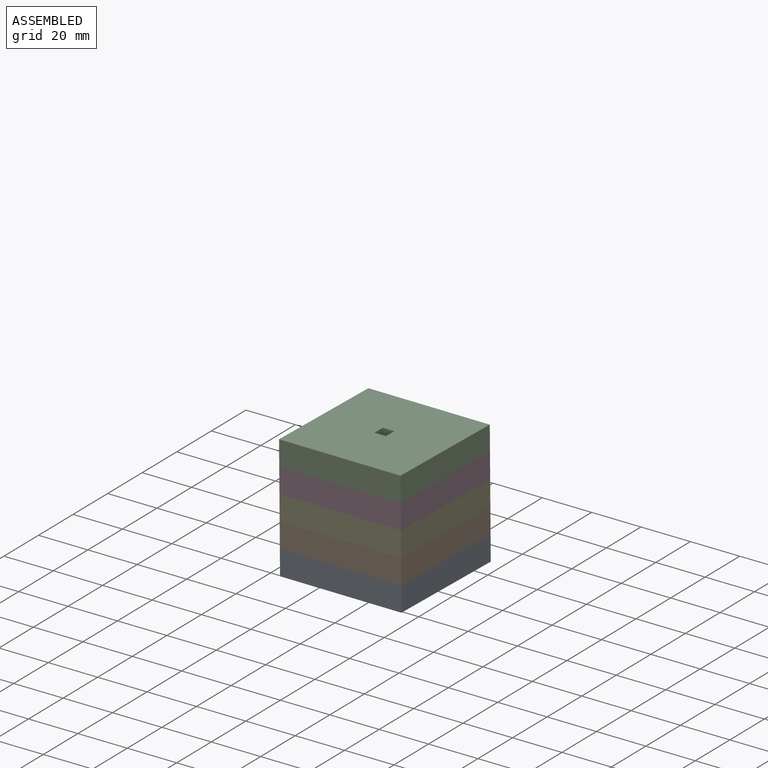
[diagram: assembled view]
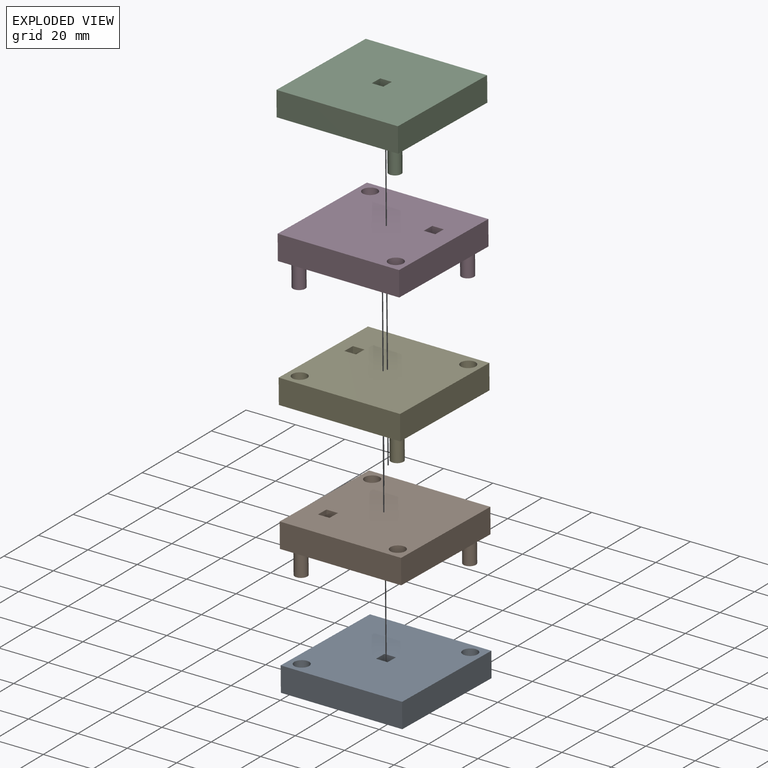
[diagram: exploded view]
GUIDED TOUR — MATED ASSEMBLY (Onshape document c3f80dff20c8093bbf8ad3bd, AutoMate assembly c3f80dff20c8093bbf8ad3bd_233ad9ad6a87a321f7715154_011e0a620a1a82ced8782404_default)

This assembly has 5 components, labeled P0..P4 below (a component is one placed occurrence of a part; the same part can appear more than once), held together by 4 mates. A mate is a constraint between two components; its type names the relative motion it leaves free:
  FASTENED — locks the two components together rigidly (no relative motion).
Axis/direction vectors are unit vectors and 'through' points are millimeter coordinates, both in the assembly's world frame.

MATES
  1. FASTENED "Fastened 2": P3 <-> P4, direction (0.009, -0.002, -1.000) through (103.99, 46.44, 52.28) mm
  2. FASTENED "Fastened 3": P4 <-> P1, direction (0.009, -0.002, -1.000) through (103.15, 6.43, 42.35) mm
  3. FASTENED "Fastened 1": P2 <-> P3, direction (0.009, -0.002, -1.000) through (102.97, 6.47, 62.35) mm
  4. FASTENED "Fastened 4": P1 <-> P0, direction (0.009, -0.002, -1.000) through (63.26, 7.34, 31.97) mm

ASSEMBLY ORDER
  1. P1 — the base component [order heuristic]
  2. P0 [order verified]
  3. P4 — core [order heuristic]
  4. P3 — core [order heuristic]
  5. P2 — core [order heuristic]
(P0 verified with a relaxed clearance tolerance: the source model stores slight part interference there.)
Order-tag legend:
  [order verified] — this step's position reverses a verified removal order: the component was checked to insert without passing through the ones already placed.
  [order heuristic] — the first 4 components form the assembly's core: parts whose collision-free extraction could not be verified, listed in mate-graph order.

Of the 5 components, 4 carry the full construction recipe — the FeatureScript program that regenerates the part's solid from scratch; the rest are supplied as boundary geometry only.
Each toured component is shown spotlighted twice — in the assembled view, then in the exploded view, where a leader line traces a displaced component back to its assembled socket (saturated green if recipe-attached, orange if geometry-only; every other component desaturated gray) — followed by its recipe or geometry summary and the mates that hold it.
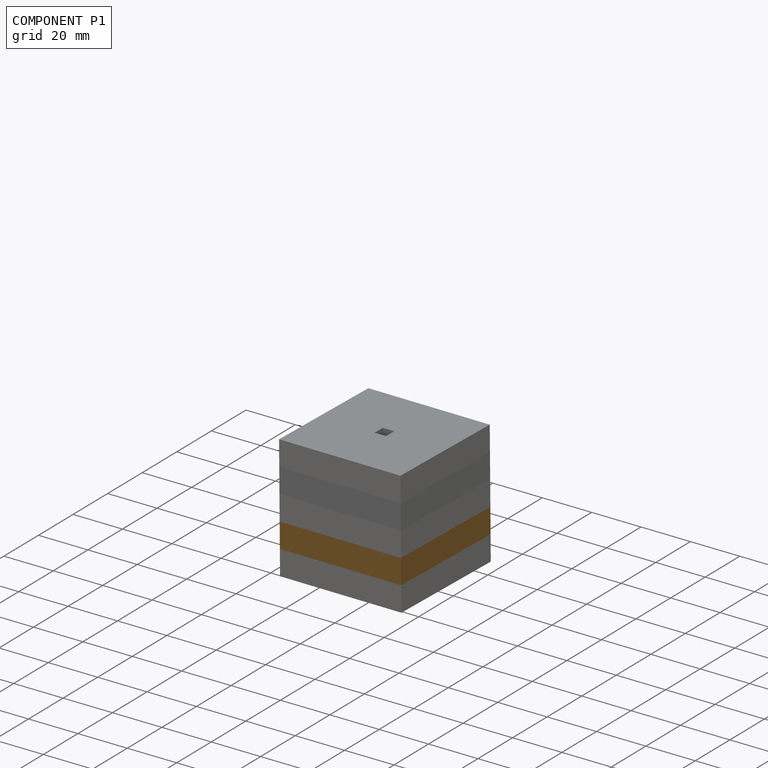
[diagram: component P1 — assembled]
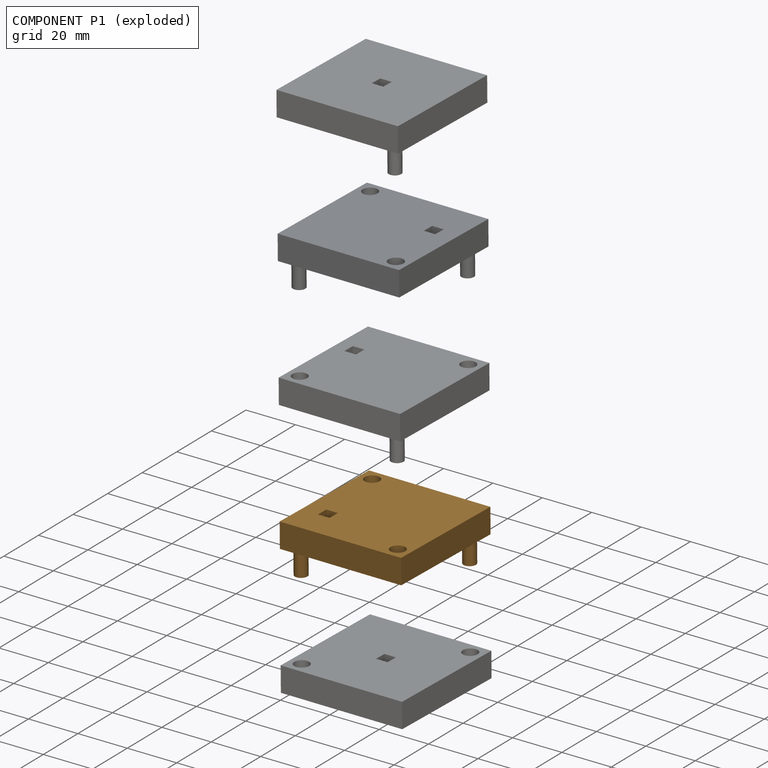
[diagram: component P1 — exploded]
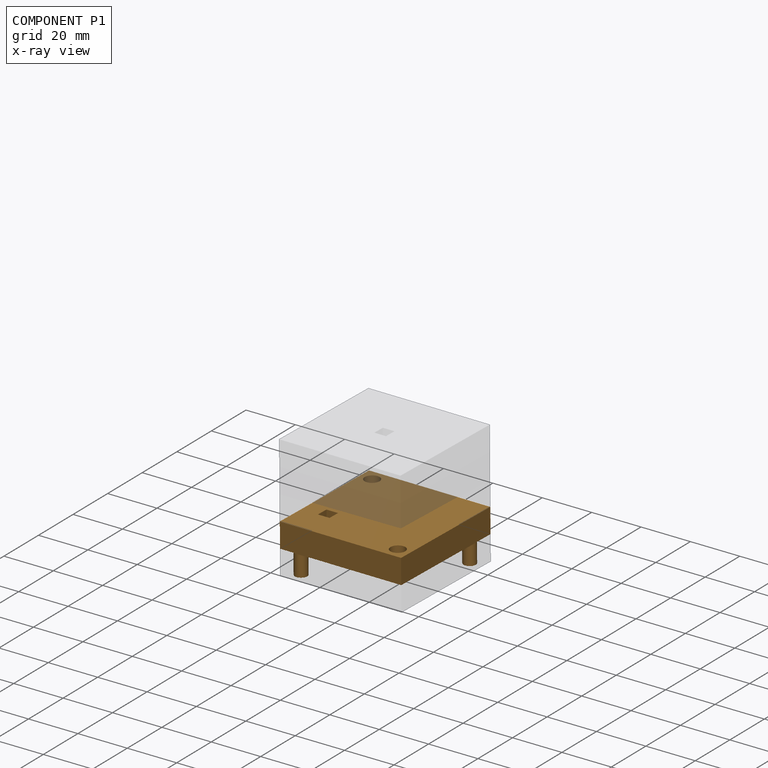
[diagram: component P1 — x-ray view]
COMPONENT P1 — geometry summary (no construction recipe available for this part):
  bounding box: 50.0 x 50.0 x 20.0 mm
  B-rep topology: 1 solid, 32 faces, 168 edges
  volume: 22181 mm^3 (44% of its bounding box)
Held by: FASTENED mate "Fastened 3" to P4; FASTENED mate "Fastened 4" to P0.
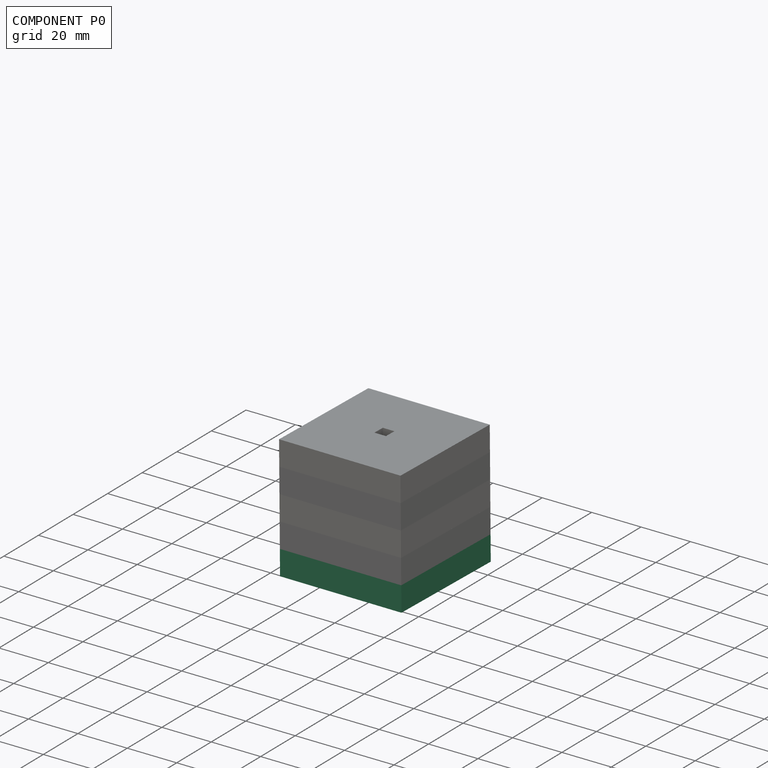
[diagram: component P0 — assembled]
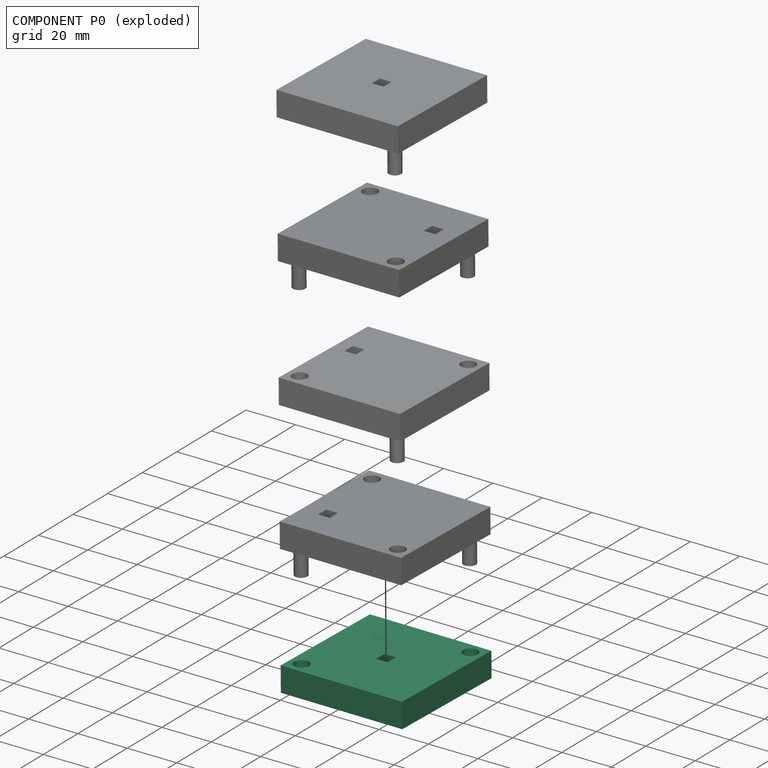
[diagram: component P0 — exploded]
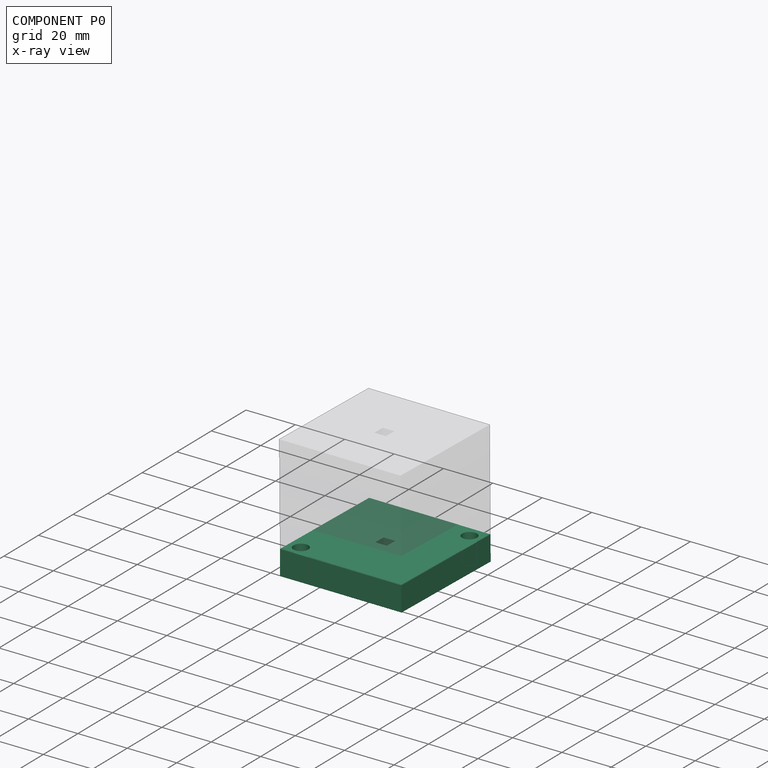
[diagram: component P0 — x-ray view]
COMPONENT P0 — recipe-attached (CADFS 00128835, mesh-verified: the recipe's output STEP matches this component's geometry to below the mesh-comparison resolution (tessellation chordal tolerance ~0.107 mm)).
Held by: FASTENED mate "Fastened 4" to P1.
Construction recipe (FeatureScript — the CAD program that rebuilds this solid; sketch coordinates are in the units given by the * unit suffixes, e.g. mm):

FeatureScript 1511;
import(path : "onshape/std/geometry.fs", version : "1511.0");
import(path : "onshape/std/common.fs", version : "1511.0");
const mm = millimeter;
const VERTEX = EntityType.VERTEX;
const EDGE = EntityType.EDGE;
const FACE = EntityType.FACE;
const BODY = EntityType.BODY;
function v(x, y){return vector(x, y);}
function OD(order){return orderDisambiguation(order);}
function OSD(set){return originalSetDisambiguation(set);}
function TD(topology){return topologyDisambiguation(topology);}
function TDD(query){return trueDependencyDisambiguation(query);}
function sQuery(a, b, c) {return sketchEntityQuery(a, b, c);}

annotation { "Feature Type Name" : "Feature", "Feature Type Description" : "" }
export const myFeature = defineFeature(function(context is Context, id is Id, definition is map)
    precondition{}
    {
        {
            var Q0;
            Q0=qCreatedBy(makeId("Top.planeOp"),FACE);
            var sketch = newSketch(context, id + "F0", { "sketchPlane" : qUnion([Q0])});
            skLineSegment(sketch, "E0.bottom", {"start": v(0, 0) * mm, "end": v(50, 0) * mm});
            skLineSegment(sketch, "E0.top", {"start": v(0, -50) * mm, "end": v(50, -50) * mm});
            skLineSegment(sketch, "E0.left", {"start": v(0, 0) * mm, "end": v(0, -50) * mm});
            skLineSegment(sketch, "E0.right", {"start": v(50, 0) * mm, "end": v(50, -50) * mm});
            skLineSegment(sketch, "E1", {"start": v(25, 0) * mm, "end": v(25, -50) * mm, "construction": true});
            skLineSegment(sketch, "E2", {"start": v(0, -25) * mm, "end": v(50, -25) * mm, "construction": true});
            skLineSegment(sketch, "E3.bottom", {"start": v(27.38, -27.38) * mm, "end": v(22.62, -27.38) * mm});
            skLineSegment(sketch, "E3.top", {"start": v(27.38, -22.62) * mm, "end": v(22.62, -22.62) * mm});
            skLineSegment(sketch, "E3.left", {"start": v(27.38, -27.38) * mm, "end": v(27.38, -22.62) * mm});
            skLineSegment(sketch, "E3.right", {"start": v(22.62, -27.38) * mm, "end": v(22.62, -22.62) * mm});
            skPoint(sketch, "E3.middle", {"position": v(25, -25) * mm});
            skCircle(sketch, "E4", {"center": v(5, -45) * mm, "radius": 3 * mm});
            skCircle(sketch, "E5", {"center": v(45, -5) * mm, "radius": 3 * mm});
            skSolve(sketch);
        }
        {
            var Q0;
            Q0=makeQuery(id+"F0.imprint","IMPRINT",FACE,{"disambiguationData":[TD([[makeQuery(id+"F0.imprint","IMPRINT",EDGE,{"derivedFrom":sQuery(id+"F0.wireOp",EDGE,"E0.bottom")}),-1.0]])]});
            extrude(context, id + "F1", {"entities" : qUnion([Q0]), "depth" : 10 * mm});
        }
    });
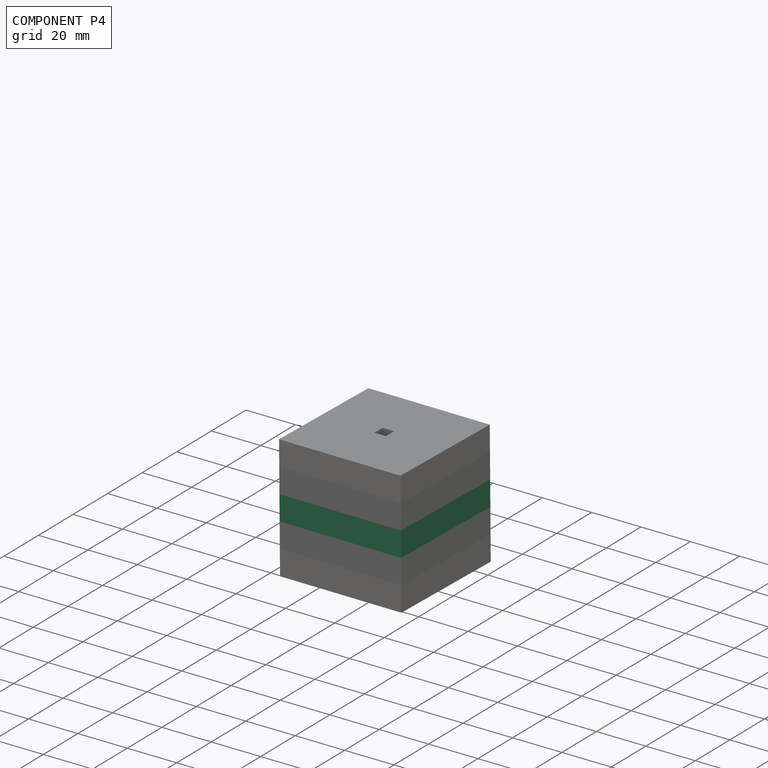
[diagram: component P4 — assembled]
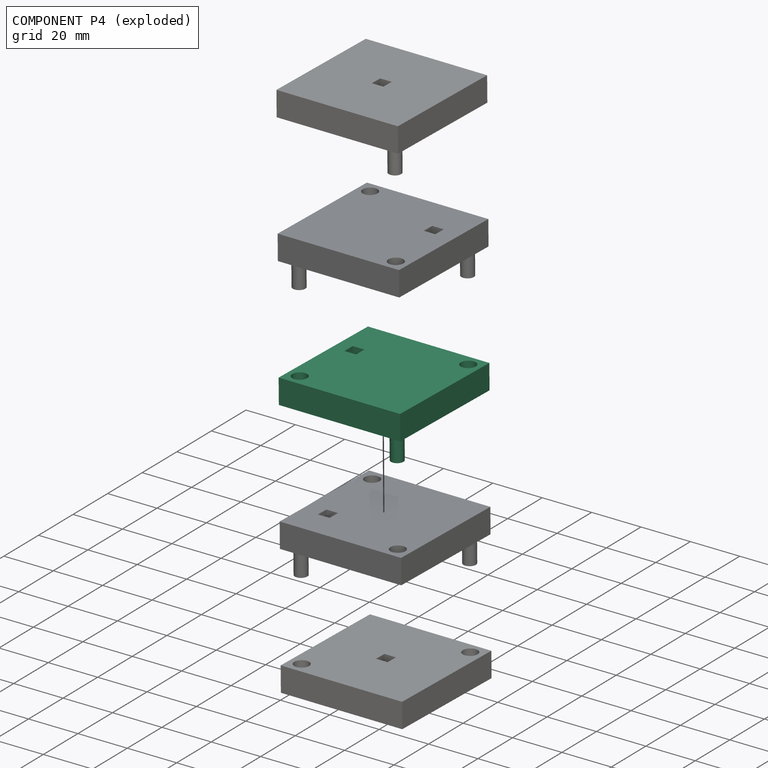
[diagram: component P4 — exploded]
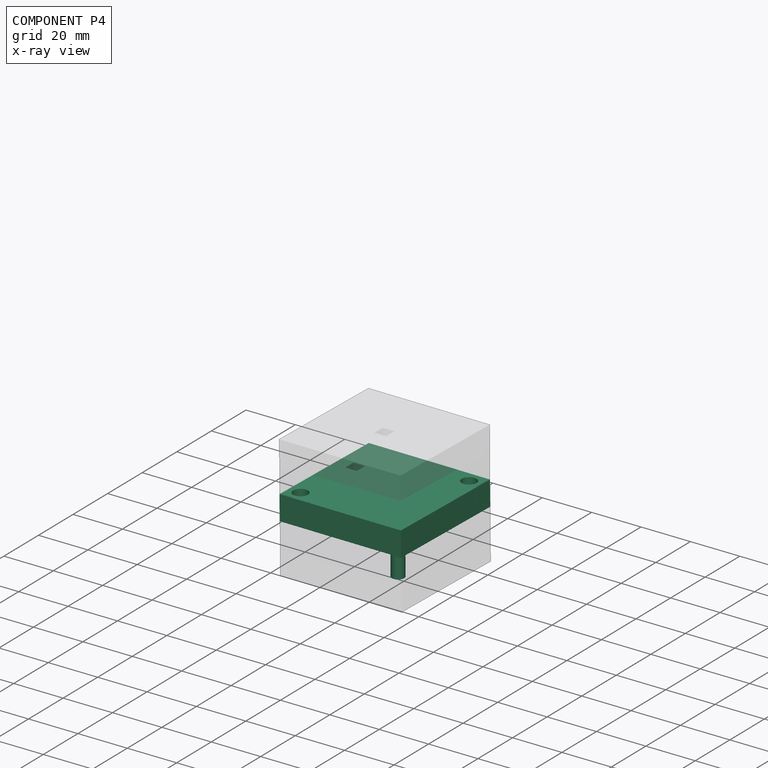
[diagram: component P4 — x-ray view]
COMPONENT P4 — recipe-attached (CADFS 00128833, mesh-verified: the recipe's output STEP matches this component's geometry to below the mesh-comparison resolution (tessellation chordal tolerance ~0.11 mm)).
Held by: FASTENED mate "Fastened 2" to P3; FASTENED mate "Fastened 3" to P1.
Construction recipe (FeatureScript — the CAD program that rebuilds this solid; sketch coordinates are in the units given by the * unit suffixes, e.g. mm):

FeatureScript 1511;
import(path : "onshape/std/geometry.fs", version : "1511.0");
import(path : "onshape/std/common.fs", version : "1511.0");
const mm = millimeter;
const VERTEX = EntityType.VERTEX;
const EDGE = EntityType.EDGE;
const FACE = EntityType.FACE;
const BODY = EntityType.BODY;
function v(x, y){return vector(x, y);}
function OD(order){return orderDisambiguation(order);}
function OSD(set){return originalSetDisambiguation(set);}
function TD(topology){return topologyDisambiguation(topology);}
function TDD(query){return trueDependencyDisambiguation(query);}
function sQuery(a, b, c) {return sketchEntityQuery(a, b, c);}

annotation { "Feature Type Name" : "Feature", "Feature Type Description" : "" }
export const myFeature = defineFeature(function(context is Context, id is Id, definition is map)
    precondition{}
    {
        {
            var Q0;
            Q0=qCreatedBy(makeId("Front.planeOp"),FACE);
            var sketch = newSketch(context, id + "F0", { "sketchPlane" : qUnion([Q0])});
            skLineSegment(sketch, "E0.bottom", {"start": v(7.18, 23.9) * mm, "end": v(-42.82, 23.9) * mm});
            skLineSegment(sketch, "E0.top", {"start": v(7.18, -26.1) * mm, "end": v(-42.82, -26.1) * mm});
            skLineSegment(sketch, "E0.left", {"start": v(7.18, 23.9) * mm, "end": v(7.18, -26.1) * mm});
            skLineSegment(sketch, "E0.right", {"start": v(-42.82, 23.9) * mm, "end": v(-42.82, -26.1) * mm});
            skCircle(sketch, "E1", {"center": v(-37.82, -21.1) * mm, "radius": 3 * mm});
            skCircle(sketch, "E2", {"center": v(2.18, -21.1) * mm, "radius": 2.5 * mm});
            skCircle(sketch, "E3", {"center": v(2.18, 18.9) * mm, "radius": 3 * mm});
            skCircle(sketch, "E4", {"center": v(-37.82, 18.9) * mm, "radius": 2.5 * mm});
            skLineSegment(sketch, "E5.bottom", {"start": v(-32.86, 8.42) * mm, "end": v(-37.62, 8.42) * mm});
            skLineSegment(sketch, "E5.top", {"start": v(-32.86, 3.65) * mm, "end": v(-37.62, 3.65) * mm});
            skLineSegment(sketch, "E5.left", {"start": v(-32.86, 8.42) * mm, "end": v(-32.86, 3.65) * mm});
            skLineSegment(sketch, "E5.right", {"start": v(-37.62, 8.42) * mm, "end": v(-37.62, 3.65) * mm});
            skLineSegment(sketch, "E6", {"start": v(-32.86, 8.42) * mm, "end": v(-16.68, 8.42) * mm});
            skLineSegment(sketch, "E7", {"start": v(-16.68, 8.42) * mm, "end": v(-16.68, 14.8) * mm});
            skLineSegment(sketch, "E8", {"start": v(-16.68, 14.8) * mm, "end": v(-11.91, 14.8) * mm});
            skLineSegment(sketch, "E9", {"start": v(-32.86, 3.65) * mm, "end": v(-16.68, 3.65) * mm});
            skLineSegment(sketch, "E10", {"start": v(-11.91, 14.8) * mm, "end": v(-11.91, 8.42) * mm});
            skLineSegment(sketch, "E11", {"start": v(-11.91, 8.42) * mm, "end": v(-2.53, 8.42) * mm});
            skLineSegment(sketch, "E12", {"start": v(-2.53, 8.42) * mm, "end": v(-2.53, -12.85) * mm});
            skLineSegment(sketch, "E13", {"start": v(-2.53, -12.85) * mm, "end": v(-13.78, -12.85) * mm});
            skLineSegment(sketch, "E14", {"start": v(-16.68, 3.65) * mm, "end": v(-9, 3.65) * mm});
            skLineSegment(sketch, "E15", {"start": v(-13.78, -12.85) * mm, "end": v(-19.58, -12.85) * mm});
            skLineSegment(sketch, "E16", {"start": v(-19.58, -12.85) * mm, "end": v(-19.58, -10.07) * mm});
            skLineSegment(sketch, "E17", {"start": v(-19.58, -10.07) * mm, "end": v(-27.18, -10.07) * mm});
            skLineSegment(sketch, "E18", {"start": v(-9, 3.65) * mm, "end": v(-9, 0.36) * mm});
            skLineSegment(sketch, "E19", {"start": v(-9, 0.36) * mm, "end": v(-14.44, 0.36) * mm});
            skLineSegment(sketch, "E20", {"start": v(-14.44, 0.36) * mm, "end": v(-14.44, -4.4) * mm});
            skLineSegment(sketch, "E21", {"start": v(-14.44, -4.4) * mm, "end": v(-7.3, -4.4) * mm});
            skLineSegment(sketch, "E22", {"start": v(-27.18, -5.3) * mm, "end": v(-14.81, -5.3) * mm});
            skLineSegment(sketch, "E23", {"start": v(-14.81, -5.3) * mm, "end": v(-14.81, -8.87) * mm});
            skLineSegment(sketch, "E24", {"start": v(-14.81, -8.87) * mm, "end": v(-7.3, -8.87) * mm});
            skLineSegment(sketch, "E25", {"start": v(-7.3, -8.87) * mm, "end": v(-7.3, -4.4) * mm});
            skLineSegment(sketch, "E26", {"start": v(-35.8, -14.19) * mm, "end": v(-31.04, -14.19) * mm});
            skLineSegment(sketch, "E27", {"start": v(-35.8, -14.19) * mm, "end": v(-35.8, -9.43) * mm});
            skLineSegment(sketch, "E28", {"start": v(-35.8, -9.43) * mm, "end": v(-31.04, -9.43) * mm});
            skLineSegment(sketch, "E29", {"start": v(-31.04, -9.43) * mm, "end": v(-31.04, -14.19) * mm});
            skLineSegment(sketch, "E30", {"start": v(-27.18, -5.3) * mm, "end": v(-35.8, -5.3) * mm});
            skLineSegment(sketch, "E31", {"start": v(-35.8, -5.3) * mm, "end": v(-35.8, -9.43) * mm});
            skLineSegment(sketch, "E32", {"start": v(-27.18, -10.07) * mm, "end": v(-27.18, -9.43) * mm});
            skLineSegment(sketch, "E33", {"start": v(-27.18, -9.43) * mm, "end": v(-31.04, -9.43) * mm});
            skSolve(sketch);
        }
        {
            var Q0;
            Q0=makeQuery(id+"F0.imprint","IMPRINT",FACE,{"disambiguationData":[TD([[makeQuery(id+"F0.imprint","IMPRINT",EDGE,{"derivedFrom":sQuery(id+"F0.wireOp",EDGE,"E0.bottom")}),1.0]])]});
            extrude(context, id + "F1", {"entities" : qUnion([Q0]), "endBound" : BoundingType.SYMMETRIC, "depth" : 10 * mm});
        }
        {
            var Q0;
            Q0=makeQuery(id+"F0.imprint","IMPRINT",FACE,{"disambiguationData":[TD([[makeQuery(id+"F0.imprint","IMPRINT",EDGE,{"derivedFrom":sQuery(id+"F0.wireOp",EDGE,"E5.left")}),1.0]])]});
            var Q1;
            Q1=makeQuery(id+"F0.imprint","IMPRINT",FACE,{"disambiguationData":[TD([[makeQuery(id+"F0.imprint","IMPRINT",EDGE,{"derivedFrom":sQuery(id+"F0.wireOp",EDGE,"E26")}),1.0]])]});
            extrude(context, id + "F2", {"entities" : qUnion([Q0, Q1]), "operationType" : NewBodyOperationType.ADD, "depth" : 5 * mm});
        }
        {
            var Q0;
            Q0=makeQuery(id+"F0.imprint","IMPRINT",FACE,{"disambiguationData":[TD([[makeQuery(id+"F0.imprint","IMPRINT",EDGE,{"derivedFrom":sQuery(id+"F0.wireOp",EDGE,"E2")}),1.0]])]});
            var Q1;
            Q1=makeQuery(id+"F0.imprint","IMPRINT",FACE,{"disambiguationData":[TD([[makeQuery(id+"F0.imprint","IMPRINT",EDGE,{"derivedFrom":sQuery(id+"F0.wireOp",EDGE,"E4")}),1.0]])]});
            extrude(context, id + "F3", {"entities" : qUnion([Q0, Q1]), "operationType" : NewBodyOperationType.ADD, "oppositeDirection" : true, "depth" : 15 * mm, "hasSecondDirection" : true, "secondDirectionOppositeDirection" : false, "secondDirectionDepth" : 5 * mm});
        }
    });
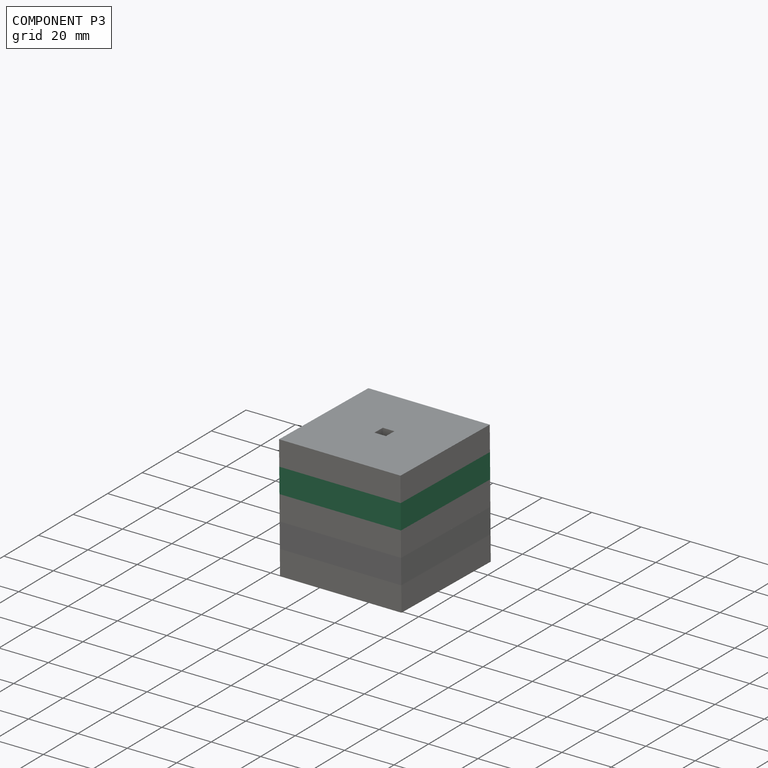
[diagram: component P3 — assembled]
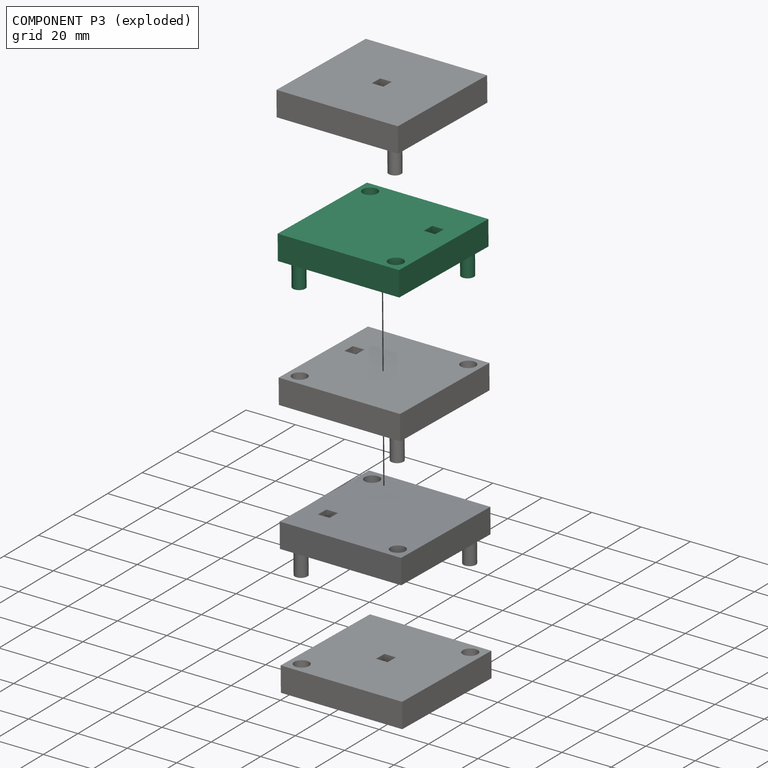
[diagram: component P3 — exploded]
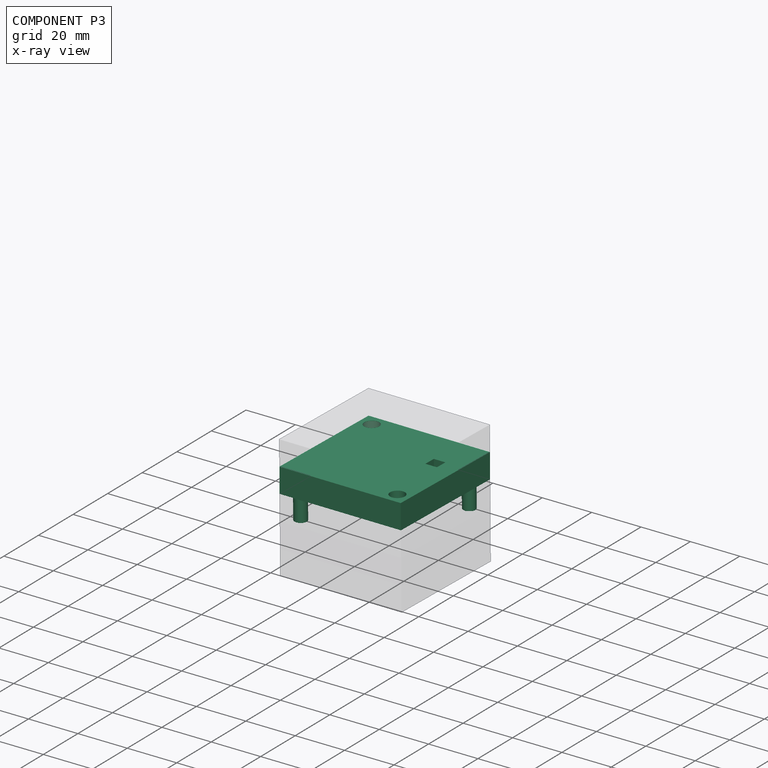
[diagram: component P3 — x-ray view]
COMPONENT P3 — recipe-attached (CADFS 00128832, mesh-verified: the recipe's output STEP matches this component's geometry to below the mesh-comparison resolution (tessellation chordal tolerance ~0.11 mm)).
Held by: FASTENED mate "Fastened 2" to P4; FASTENED mate "Fastened 1" to P2.
Construction recipe (FeatureScript — the CAD program that rebuilds this solid; sketch coordinates are in the units given by the * unit suffixes, e.g. mm):

FeatureScript 1511;
import(path : "onshape/std/geometry.fs", version : "1511.0");
import(path : "onshape/std/common.fs", version : "1511.0");
const mm = millimeter;
const VERTEX = EntityType.VERTEX;
const EDGE = EntityType.EDGE;
const FACE = EntityType.FACE;
const BODY = EntityType.BODY;
function v(x, y){return vector(x, y);}
function OD(order){return orderDisambiguation(order);}
function OSD(set){return originalSetDisambiguation(set);}
function TD(topology){return topologyDisambiguation(topology);}
function TDD(query){return trueDependencyDisambiguation(query);}
function sQuery(a, b, c) {return sketchEntityQuery(a, b, c);}

annotation { "Feature Type Name" : "Feature", "Feature Type Description" : "" }
export const myFeature = defineFeature(function(context is Context, id is Id, definition is map)
    precondition{}
    {
        {
            var Q0;
            Q0=qCreatedBy(makeId("Top.planeOp"),FACE);
            var sketch = newSketch(context, id + "F0", { "sketchPlane" : qUnion([Q0])});
            skLineSegment(sketch, "E0.bottom", {"start": v(0, 0) * mm, "end": v(50, 0) * mm});
            skLineSegment(sketch, "E0.top", {"start": v(0, -50) * mm, "end": v(50, -50) * mm});
            skLineSegment(sketch, "E0.left", {"start": v(0, 0) * mm, "end": v(0, -50) * mm});
            skLineSegment(sketch, "E0.right", {"start": v(50, 0) * mm, "end": v(50, -50) * mm});
            skLineSegment(sketch, "E1", {"start": v(25, 0) * mm, "end": v(25, -50) * mm, "construction": true});
            skLineSegment(sketch, "E2", {"start": v(0, -25) * mm, "end": v(50, -25) * mm, "construction": true});
            skPoint(sketch, "E3", {"position": v(38.1, -34.78) * mm});
            skLineSegment(sketch, "E4.top", {"start": v(38.1, -30.02) * mm, "end": v(42.86, -30.02) * mm});
            skLineSegment(sketch, "E4.right", {"start": v(42.86, -34.78) * mm, "end": v(42.86, -30.02) * mm});
            skPoint(sketch, "E5", {"position": v(9.52, -9.53) * mm});
            skLineSegment(sketch, "E6", {"start": v(9.52, -9.53) * mm, "end": v(9.52, -14.29) * mm});
            skLineSegment(sketch, "E7", {"start": v(9.52, -9.53) * mm, "end": v(19.05, -9.53) * mm});
            skLineSegment(sketch, "E8.MirrorCS", {"start": v(28.57, -9.52) * mm, "end": v(23.81, -9.52) * mm});
            skLineSegment(sketch, "E9.MirrorCS", {"start": v(9.52, -28.57) * mm, "end": v(9.52, -19.05) * mm});
            skLineSegment(sketch, "E10.MirrorCS", {"start": v(23.81, -28.57) * mm, "end": v(19.05, -28.57) * mm});
            skLineSegment(sketch, "E11.MirrorCS", {"start": v(30.85, -14.7) * mm, "end": v(30.85, -19.46) * mm});
            skLineSegment(sketch, "E12", {"start": v(30.85, -14.7) * mm, "end": v(40.04, -14.7) * mm});
            skLineSegment(sketch, "E13", {"start": v(28.57, -9.52) * mm, "end": v(38.8, -9.52) * mm});
            skPoint(sketch, "E14.orphan", {"position": v(30.85, -9.94) * mm});
            skLineSegment(sketch, "E15", {"start": v(38.1, -30.02) * mm, "end": v(38.1, -34.78) * mm});
            skPoint(sketch, "E16.orphan", {"position": v(9.52, -28.57) * mm});
            skLineSegment(sketch, "E17", {"start": v(23.81, -9.52) * mm, "end": v(23.81, -19.05) * mm});
            skLineSegment(sketch, "E18", {"start": v(23.81, -28.57) * mm, "end": v(23.81, -23.81) * mm});
            skLineSegment(sketch, "E19", {"start": v(19.05, -9.53) * mm, "end": v(19.05, -19.05) * mm});
            skLineSegment(sketch, "E20", {"start": v(23.81, -19.05) * mm, "end": v(19.05, -19.05) * mm});
            skPoint(sketch, "E21.orphan", {"position": v(19.05, -9.53) * mm});
            skLineSegment(sketch, "E22", {"start": v(14.29, -23.81) * mm, "end": v(19.05, -23.81) * mm});
            skLineSegment(sketch, "E23", {"start": v(19.05, -28.57) * mm, "end": v(19.05, -23.81) * mm});
            skLineSegment(sketch, "E24", {"start": v(14.29, -28.57) * mm, "end": v(14.29, -23.81) * mm});
            skPoint(sketch, "E25.orphan", {"position": v(9.52, -23.81) * mm});
            skLineSegment(sketch, "E26", {"start": v(9.52, -14.29) * mm, "end": v(14.29, -14.29) * mm});
            skLineSegment(sketch, "E27", {"start": v(9.52, -19.05) * mm, "end": v(14.29, -19.05) * mm});
            skLineSegment(sketch, "E28", {"start": v(14.29, -19.05) * mm, "end": v(14.29, -14.29) * mm});
            skLineSegment(sketch, "E29", {"start": v(38.8, -9.52) * mm, "end": v(44.8, -9.52) * mm});
            skLineSegment(sketch, "E30", {"start": v(44.8, -9.52) * mm, "end": v(44.8, -19.46) * mm});
            skLineSegment(sketch, "E31", {"start": v(40.04, -14.7) * mm, "end": v(40.04, -19.46) * mm});
            skLineSegment(sketch, "E32", {"start": v(40.04, -19.46) * mm, "end": v(44.8, -19.46) * mm});
            skLineSegment(sketch, "E33", {"start": v(38.1, -34.78) * mm, "end": v(42.86, -34.78) * mm});
            skLineSegment(sketch, "E34", {"start": v(30.85, -23.81) * mm, "end": v(30.85, -19.46) * mm});
            skLineSegment(sketch, "E35", {"start": v(23.81, -23.81) * mm, "end": v(30.85, -23.81) * mm});
            skCircle(sketch, "E36", {"center": v(45, -5) * mm, "radius": 3 * mm});
            skCircle(sketch, "E37", {"center": v(5, -45) * mm, "radius": 3 * mm});
            skLineSegment(sketch, "E38", {"start": v(38.1, -30.02) * mm, "end": v(14.29, -30.02) * mm});
            skLineSegment(sketch, "E39", {"start": v(14.29, -30.02) * mm, "end": v(14.29, -28.57) * mm});
            skLineSegment(sketch, "E40", {"start": v(38.1, -34.78) * mm, "end": v(9.52, -34.78) * mm});
            skLineSegment(sketch, "E41", {"start": v(9.52, -34.78) * mm, "end": v(9.52, -28.57) * mm});
            skSolve(sketch);
        }
        {
            var Q0;
            Q0=makeQuery(id+"F0.imprint","IMPRINT",FACE,{"disambiguationData":[TD([[makeQuery(id+"F0.imprint","IMPRINT",EDGE,{"derivedFrom":sQuery(id+"F0.wireOp",EDGE,"E0.bottom")}),-1.0]])]});
            extrude(context, id + "F1", {"entities" : qUnion([Q0]), "endBound" : BoundingType.SYMMETRIC, "depth" : 10 * mm});
        }
        {
            var Q0;
            Q0=makeQuery(id+"F0.imprint","IMPRINT",FACE,{"disambiguationData":[TD([[makeQuery(id+"F0.imprint","IMPRINT",EDGE,{"derivedFrom":sQuery(id+"F0.wireOp",EDGE,"E6")}),1.0]])]});
            extrude(context, id + "F2", {"entities" : qUnion([Q0]), "operationType" : NewBodyOperationType.ADD, "oppositeDirection" : true, "depth" : 5 * mm});
        }
        {
            var Q0;
            Q0=makeQuery(id+"F1.opExtrude","CAP_FACE",FACE,{"disambiguationData":[OSD([sQuery(id+"F0.wireOp",EDGE,"E0.bottom"),sQuery(id+"F0.wireOp",EDGE,"E0.top"),sQuery(id+"F0.wireOp",EDGE,"E0.left"),sQuery(id+"F0.wireOp",EDGE,"E0.right"),sQuery(id+"F0.wireOp",EDGE,"E4.top"),sQuery(id+"F0.wireOp",EDGE,"E4.right"),sQuery(id+"F0.wireOp",EDGE,"E6"),sQuery(id+"F0.wireOp",EDGE,"E7"),sQuery(id+"F0.wireOp",EDGE,"E8.MirrorCS"),sQuery(id+"F0.wireOp",EDGE,"E9.MirrorCS"),sQuery(id+"F0.wireOp",EDGE,"E10.MirrorCS"),sQuery(id+"F0.wireOp",EDGE,"E11.MirrorCS"),sQuery(id+"F0.wireOp",EDGE,"E12"),sQuery(id+"F0.wireOp",EDGE,"E13"),sQuery(id+"F0.wireOp",EDGE,"E17"),sQuery(id+"F0.wireOp",EDGE,"E18"),sQuery(id+"F0.wireOp",EDGE,"E19"),sQuery(id+"F0.wireOp",EDGE,"E20"),sQuery(id+"F0.wireOp",EDGE,"E22"),sQuery(id+"F0.wireOp",EDGE,"E23"),sQuery(id+"F0.wireOp",EDGE,"E24"),sQuery(id+"F0.wireOp",EDGE,"E26"),sQuery(id+"F0.wireOp",EDGE,"E27"),sQuery(id+"F0.wireOp",EDGE,"E28"),sQuery(id+"F0.wireOp",EDGE,"E29"),sQuery(id+"F0.wireOp",EDGE,"E30"),sQuery(id+"F0.wireOp",EDGE,"E31"),sQuery(id+"F0.wireOp",EDGE,"E32"),sQuery(id+"F0.wireOp",EDGE,"E33"),sQuery(id+"F0.wireOp",EDGE,"E34"),sQuery(id+"F0.wireOp",EDGE,"E35"),sQuery(id+"F0.wireOp",EDGE,"E36"),sQuery(id+"F0.wireOp",EDGE,"E37"),sQuery(id+"F0.wireOp",EDGE,"E38"),sQuery(id+"F0.wireOp",EDGE,"E39"),sQuery(id+"F0.wireOp",EDGE,"E40"),sQuery(id+"F0.wireOp",EDGE,"E41")])],"isStart":false});
            var sketch = newSketch(context, id + "F3", { "sketchPlane" : qUnion([Q0])});
            skCircle(sketch, "E42", {"center": v(5, -5) * mm, "radius": 2.5 * mm});
            skCircle(sketch, "E43", {"center": v(45, -45) * mm, "radius": 2.5 * mm});
            skSolve(sketch);
        }
        {
            var Q0;
            Q0=makeQuery(id+"F3.imprint","IMPRINT",FACE,{"disambiguationData":[TD([[makeQuery(id+"F3.imprint","IMPRINT",EDGE,{"derivedFrom":sQuery(id+"F3.wireOp",EDGE,"E42")}),1.0]])]});
            var Q1;
            Q1=makeQuery(id+"F3.imprint","IMPRINT",FACE,{"disambiguationData":[TD([[makeQuery(id+"F3.imprint","IMPRINT",EDGE,{"derivedFrom":sQuery(id+"F3.wireOp",EDGE,"E43")}),1.0]])]});
            extrude(context, id + "F4", {"entities" : qUnion([Q0, Q1]), "operationType" : NewBodyOperationType.ADD, "depth" : 10 * mm});
        }
    });
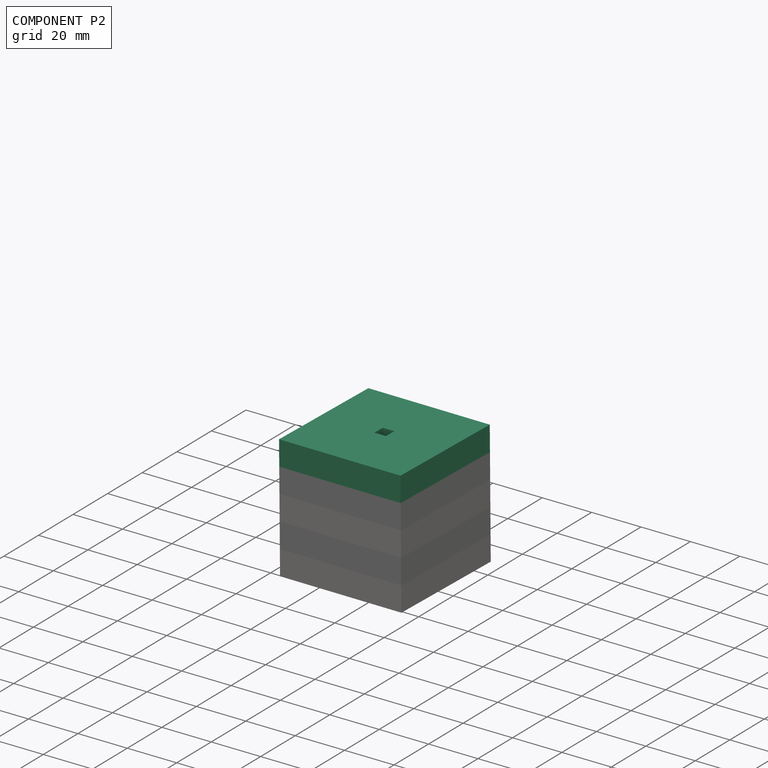
[diagram: component P2 — assembled]
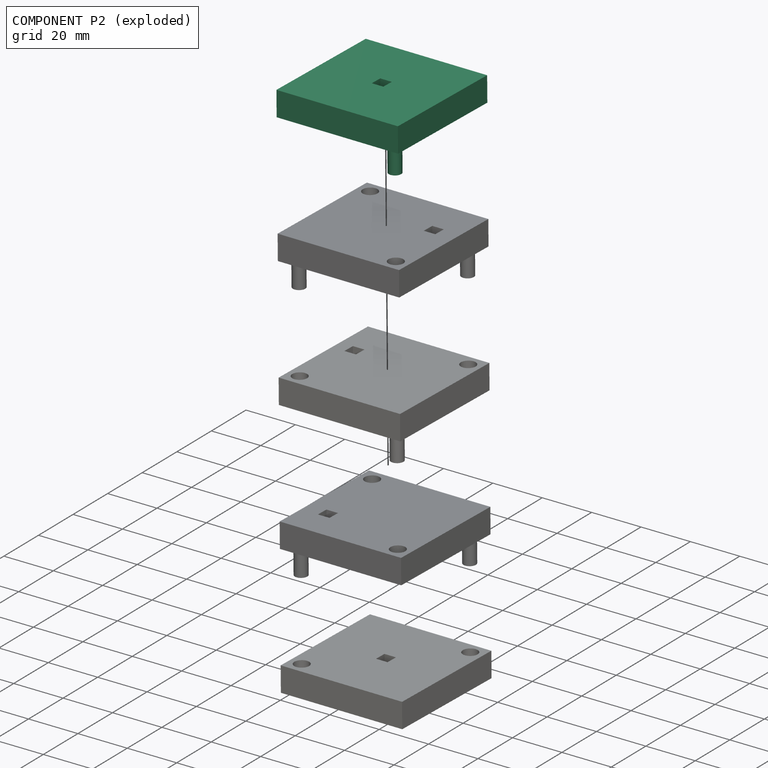
[diagram: component P2 — exploded]
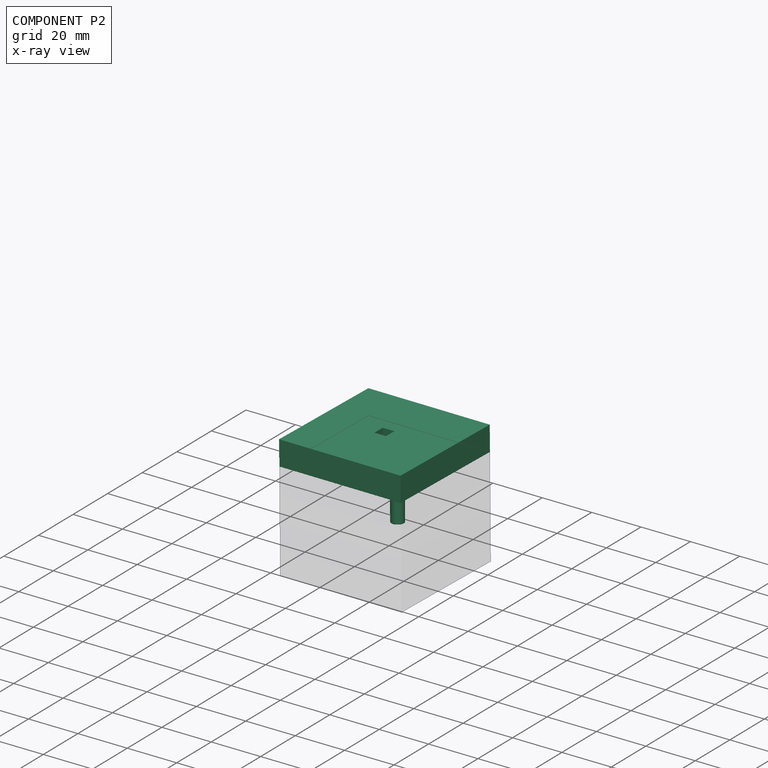
[diagram: component P2 — x-ray view]
COMPONENT P2 — recipe-attached (CADFS 00128831, mesh-verified: the recipe's output STEP matches this component's geometry to below the mesh-comparison resolution (tessellation chordal tolerance ~0.11 mm)).
Held by: FASTENED mate "Fastened 1" to P3.
Construction recipe (FeatureScript — the CAD program that rebuilds this solid; sketch coordinates are in the units given by the * unit suffixes, e.g. mm):

FeatureScript 1511;
import(path : "onshape/std/geometry.fs", version : "1511.0");
import(path : "onshape/std/common.fs", version : "1511.0");
const mm = millimeter;
const VERTEX = EntityType.VERTEX;
const EDGE = EntityType.EDGE;
const FACE = EntityType.FACE;
const BODY = EntityType.BODY;
function v(x, y){return vector(x, y);}
function OD(order){return orderDisambiguation(order);}
function OSD(set){return originalSetDisambiguation(set);}
function TD(topology){return topologyDisambiguation(topology);}
function TDD(query){return trueDependencyDisambiguation(query);}
function sQuery(a, b, c) {return sketchEntityQuery(a, b, c);}

annotation { "Feature Type Name" : "Feature", "Feature Type Description" : "" }
export const myFeature = defineFeature(function(context is Context, id is Id, definition is map)
    precondition{}
    {
        {
            var Q0;
            Q0=qCreatedBy(makeId("Top.planeOp"),FACE);
            var sketch = newSketch(context, id + "F0", { "sketchPlane" : qUnion([Q0])});
            skLineSegment(sketch, "E0.bottom", {"start": v(0, 0) * mm, "end": v(50, 0) * mm});
            skLineSegment(sketch, "E0.top", {"start": v(0, -50) * mm, "end": v(50, -50) * mm});
            skLineSegment(sketch, "E0.left", {"start": v(0, 0) * mm, "end": v(0, -50) * mm});
            skLineSegment(sketch, "E0.right", {"start": v(50, 0) * mm, "end": v(50, -50) * mm});
            skLineSegment(sketch, "E1", {"start": v(25, 0) * mm, "end": v(25, -50) * mm, "construction": true});
            skLineSegment(sketch, "E2", {"start": v(0, -25) * mm, "end": v(50, -25) * mm, "construction": true});
            skLineSegment(sketch, "E3", {"start": v(22.62, -25) * mm, "end": v(22.62, -22.62) * mm});
            skLineSegment(sketch, "E4", {"start": v(22.62, -22.62) * mm, "end": v(25, -22.62) * mm});
            skLineSegment(sketch, "E5", {"start": v(27.38, -22.62) * mm, "end": v(27.38, -25) * mm});
            skLineSegment(sketch, "E6", {"start": v(27.38, -25) * mm, "end": v(27.38, -27.38) * mm});
            skLineSegment(sketch, "E7", {"start": v(27.38, -27.38) * mm, "end": v(25, -27.38) * mm});
            skLineSegment(sketch, "E8", {"start": v(25, -27.38) * mm, "end": v(22.62, -27.38) * mm});
            skLineSegment(sketch, "E9", {"start": v(22.62, -27.38) * mm, "end": v(22.62, -25) * mm});
            skLineSegment(sketch, "E10", {"start": v(27.38, -22.62) * mm, "end": v(25, -22.62) * mm});
            skLineSegment(sketch, "E11", {"start": v(22.62, -22.62) * mm, "end": v(22.62, -12.24) * mm});
            skLineSegment(sketch, "E12", {"start": v(27.38, -22.62) * mm, "end": v(27.38, -17) * mm});
            skLineSegment(sketch, "E13", {"start": v(27.38, -17) * mm, "end": v(34.78, -17) * mm});
            skLineSegment(sketch, "E14", {"start": v(34.78, -17) * mm, "end": v(34.78, -33.8) * mm});
            skLineSegment(sketch, "E15", {"start": v(34.78, -33.8) * mm, "end": v(30.02, -33.8) * mm});
            skLineSegment(sketch, "E16", {"start": v(30.02, -33.8) * mm, "end": v(30.02, -38.56) * mm});
            skLineSegment(sketch, "E17", {"start": v(30.02, -38.56) * mm, "end": v(34.78, -38.56) * mm});
            skLineSegment(sketch, "E18", {"start": v(34.78, -38.56) * mm, "end": v(39.55, -38.56) * mm});
            skLineSegment(sketch, "E19", {"start": v(39.55, -38.56) * mm, "end": v(39.55, -17) * mm});
            skLineSegment(sketch, "E20", {"start": v(22.62, -12.24) * mm, "end": v(39.55, -12.24) * mm});
            skLineSegment(sketch, "E21", {"start": v(39.55, -12.24) * mm, "end": v(39.55, -17) * mm});
            skLineSegment(sketch, "E22", {"start": v(13.34, -27.38) * mm, "end": v(13.34, -14.24) * mm});
            skLineSegment(sketch, "E23", {"start": v(13.34, -14.24) * mm, "end": v(4.88, -14.24) * mm});
            skLineSegment(sketch, "E24", {"start": v(22.62, -22.62) * mm, "end": v(18.1, -22.62) * mm});
            skLineSegment(sketch, "E25", {"start": v(18.1, -22.62) * mm, "end": v(18.1, -14.24) * mm});
            skLineSegment(sketch, "E26", {"start": v(18.1, -14.24) * mm, "end": v(18.1, -9.47) * mm});
            skLineSegment(sketch, "E27", {"start": v(9.64, -9.47) * mm, "end": v(9.64, -5.4) * mm});
            skLineSegment(sketch, "E28", {"start": v(4.88, -5.4) * mm, "end": v(9.64, -5.4) * mm});
            skLineSegment(sketch, "E29", {"start": v(34.78, -38.56) * mm, "end": v(34.78, -33.8) * mm});
            skLineSegment(sketch, "E30", {"start": v(13.34, -27.38) * mm, "end": v(18.1, -27.38) * mm});
            skLineSegment(sketch, "E31", {"start": v(22.62, -27.38) * mm, "end": v(18.1, -27.38) * mm});
            skLineSegment(sketch, "E32", {"start": v(18.1, -9.47) * mm, "end": v(13.34, -9.47) * mm});
            skLineSegment(sketch, "E33", {"start": v(13.34, -9.47) * mm, "end": v(9.64, -9.47) * mm});
            skLineSegment(sketch, "E34", {"start": v(4.88, -14.24) * mm, "end": v(4.88, -9.47) * mm});
            skLineSegment(sketch, "E35", {"start": v(4.88, -5.4) * mm, "end": v(4.88, -9.47) * mm});
            skPoint(sketch, "E36.center.orphan", {"position": v(5, -25) * mm});
            skPoint(sketch, "E37.center.orphan", {"position": v(25, -45) * mm});
            skCircle(sketch, "E38", {"center": v(5, -45) * mm, "radius": 2.5 * mm});
            skCircle(sketch, "E39", {"center": v(45, -5) * mm, "radius": 2.5 * mm});
            skSolve(sketch);
        }
        {
            var Q0;
            Q0=makeQuery(id+"F0.imprint","IMPRINT",FACE,{"disambiguationData":[TD([[makeQuery(id+"F0.imprint","IMPRINT",EDGE,{"derivedFrom":sQuery(id+"F0.wireOp",EDGE,"E0.bottom")}),-1.0]])]});
            extrude(context, id + "F1", {"entities" : qUnion([Q0]), "endBound" : BoundingType.SYMMETRIC, "depth" : 10 * mm});
        }
        {
            var Q0;
            Q0=makeQuery(id+"F0.imprint","IMPRINT",FACE,{"disambiguationData":[TD([[makeQuery(id+"F0.imprint","IMPRINT",EDGE,{"derivedFrom":sQuery(id+"F0.wireOp",EDGE,"E3")}),1.0]])]});
            var Q1;
            Q1=makeQuery(id+"F0.imprint","IMPRINT",FACE,{"disambiguationData":[TD([[makeQuery(id+"F0.imprint","IMPRINT",EDGE,{"derivedFrom":sQuery(id+"F0.wireOp",EDGE,"E4")}),1.0]])]});
            var Q2;
            Q2=makeQuery(id+"F0.imprint","IMPRINT",FACE,{"disambiguationData":[TD([[makeQuery(id+"F0.imprint","IMPRINT",EDGE,{"derivedFrom":sQuery(id+"F0.wireOp",EDGE,"E15")}),1.0]])]});
            extrude(context, id + "F2", {"entities" : qUnion([Q0, Q1, Q2]), "operationType" : NewBodyOperationType.REMOVE, "depth" : 2.38 * mm});
        }
        {
            var Q0;
            Q0=makeQuery(id+"F0.imprint","IMPRINT",FACE,{"disambiguationData":[TD([[makeQuery(id+"F0.imprint","IMPRINT",EDGE,{"derivedFrom":sQuery(id+"F0.wireOp",EDGE,"E4")}),1.0]])]});
            var Q1;
            Q1=makeQuery(id+"F0.imprint","IMPRINT",FACE,{"disambiguationData":[TD([[makeQuery(id+"F0.imprint","IMPRINT",EDGE,{"derivedFrom":sQuery(id+"F0.wireOp",EDGE,"E15")}),1.0]])]});
            var Q2;
            Q2=makeQuery(id+"F0.imprint","IMPRINT",FACE,{"disambiguationData":[TD([[makeQuery(id+"F0.imprint","IMPRINT",EDGE,{"derivedFrom":sQuery(id+"F0.wireOp",EDGE,"E3")}),1.0]])]});
            extrude(context, id + "F3", {"entities" : qUnion([Q0, Q1, Q2]), "operationType" : NewBodyOperationType.ADD, "oppositeDirection" : true, "depth" : 5 * mm});
        }
        {
            var Q0;
            Q0=makeQuery(id+"F0.imprint","IMPRINT",FACE,{"disambiguationData":[TD([[makeQuery(id+"F0.imprint","IMPRINT",EDGE,{"derivedFrom":sQuery(id+"F0.wireOp",EDGE,"E38")}),1.0]])]});
            var Q1;
            Q1=makeQuery(id+"F0.imprint","IMPRINT",FACE,{"disambiguationData":[TD([[makeQuery(id+"F0.imprint","IMPRINT",EDGE,{"derivedFrom":sQuery(id+"F0.wireOp",EDGE,"E39")}),1.0]])]});
            extrude(context, id + "F4", {"entities" : qUnion([Q0, Q1]), "operationType" : NewBodyOperationType.ADD, "depth" : 15 * mm, "hasSecondDirection" : true, "secondDirectionOppositeDirection" : true, "secondDirectionDepth" : 5 * mm});
        }
    });
PROVENANCE & LICENSES
Assembly (occurrences, transforms, mates, per-part STEP geometry): AutoMate dataset, Zenodo record 7776208, CC0.
Construction recipes: CADFS (HuggingFace VladPyatov/CADFS, CC-BY-4.0, layered over the ABC dataset), FeatureScript reconstruction programs keyed by ABC model id.
Join: ABC meta listings map ABC model id -> Onshape documentId; within a shared document, parts are matched by geometric signature (bounding-box dims + volume at 0.1% relative tolerance, exact B-rep face/solid counts).
Verification: 4 of this assembly's 5 components carry a recipe attachment, and every attachment is mesh-verified: the CADFS STEP and the AutoMate member STEP were compared as meshes in their shared local frame (symmetric sampled-point-to-mesh distance); worst across the 4 attachments: below the mesh-comparison resolution (tessellation chordal tolerance ~0.11 mm) on a 73 mm part.
Renders: orthographic iso camera (az 35 / el 25); the floor grid conveys scale (grid pitch printed in each image; no ruler). In the exploded view each component is displaced by its stored offset vector: the offsets alone carry the explosion direction (mate normal/axis signs are not orientation cues and do not encode it), and separation distances are assigned per mate-chain, not proportionally to assembly-order depth.
